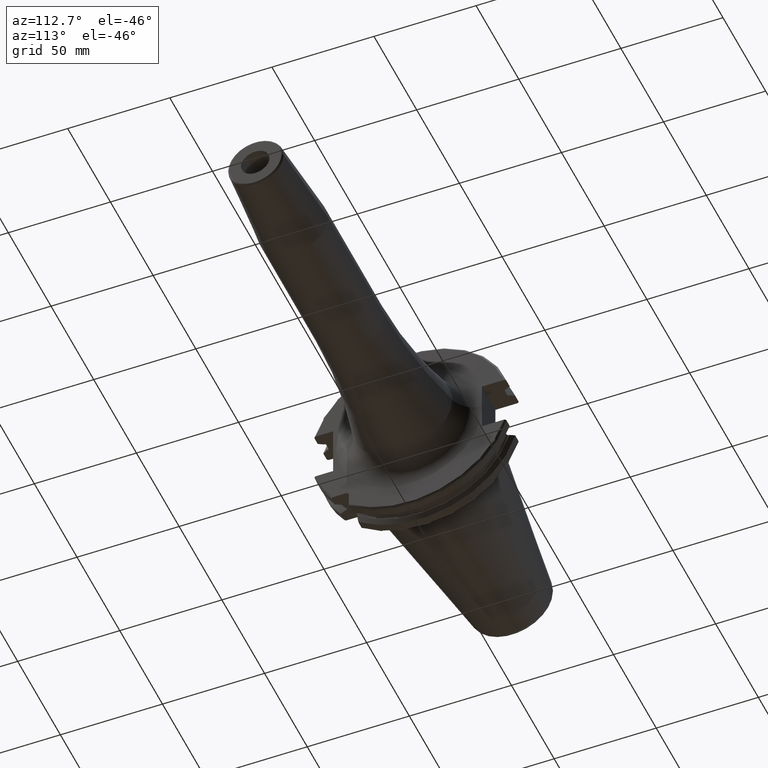
[diagram: clean part render]
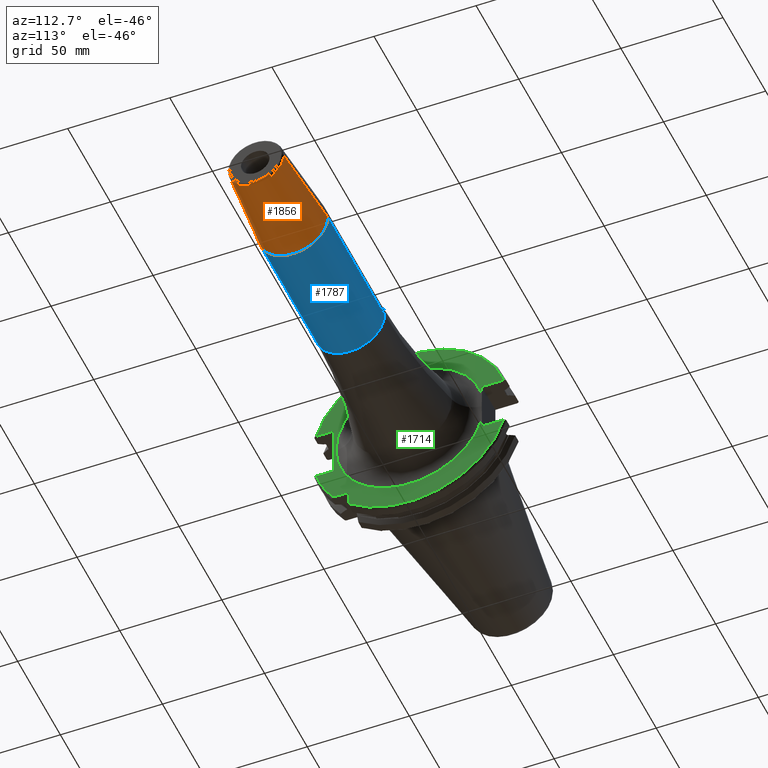
[diagram: same view with three faces highlighted in distinct colors, each labeled with its STEP entity id]
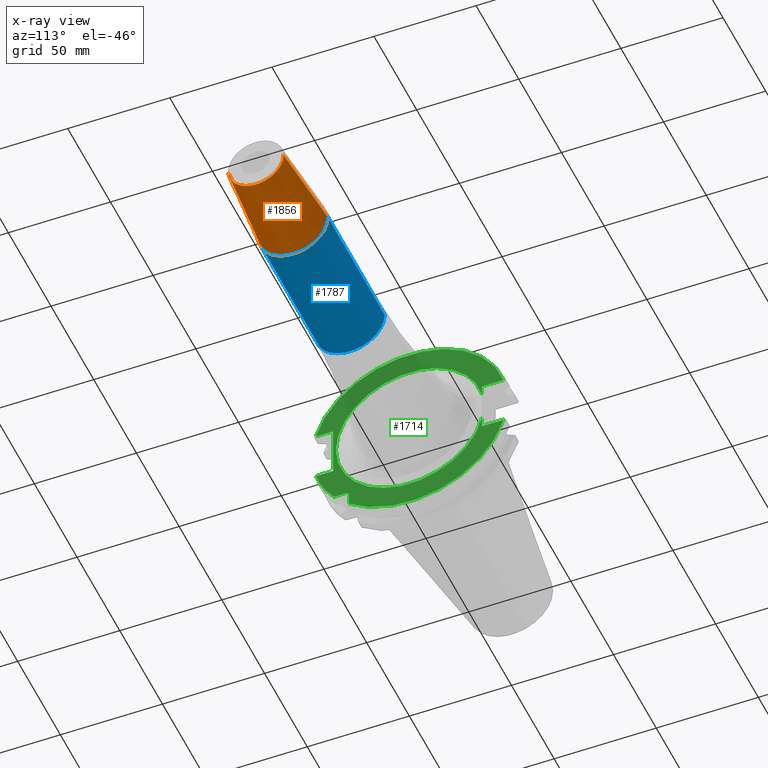
[diagram: x-ray of the same camera — body ghosted, the three highlighted faces saturated]
A machine part, auxiliary view with three faces highlighted in distinct colors.
The next image is the same camera in x-ray (body ghosted, the three faces saturated) — at least one of them is partly hidden behind the body in this view.
Their STEP definitions:

[orange] entity #1856 — the highlighted conical surface has half-angle 4.5 deg.
#225=CARTESIAN_POINT('',(1.555282834234E2,0.E0,0.E0));
#226=DIRECTION('',(-1.E0,0.E0,0.E0));
#227=DIRECTION('',(0.E0,1.E0,0.E0));
#228=AXIS2_PLACEMENT_3D('',#225,#226,#227);
#259=CARTESIAN_POINT('',(1.990784590957E2,0.E0,0.E0));
#260=DIRECTION('',(-1.E0,0.E0,0.E0));
#261=DIRECTION('',(0.E0,1.E0,0.E0));
#262=AXIS2_PLACEMENT_3D('',#259,#260,#261);
#264=DIRECTION('',(-9.969173337331E-1,7.845909572784E-2,6.257929142752E-14));
#265=VECTOR('',#264,4.368484145948E1);
#266=CARTESIAN_POINT('',(1.990784590957E2,1.357252684207E1,
-2.731684525099E-12));
#267=LINE('',#266,#265);
#268=DIRECTION('',(-9.969173337331E-1,-7.845909572784E-2,-6.256993807104E-14));
#269=VECTOR('',#268,4.368484145948E1);
#270=CARTESIAN_POINT('',(1.990784590957E2,-1.357252684207E1,
2.731275925204E-12));
#271=LINE('',#270,#269);
#1470=CARTESIAN_POINT('',(1.555282834234E2,1.7E1,0.E0));
#1471=CARTESIAN_POINT('',(1.555282834234E2,-1.7E1,0.E0));
#1472=VERTEX_POINT('',#1470);
#1473=VERTEX_POINT('',#1471);
#1474=CARTESIAN_POINT('',(1.990784590957E2,1.357252684207E1,0.E0));
#1475=CARTESIAN_POINT('',(1.990784590957E2,-1.357252684207E1,0.E0));
#1476=VERTEX_POINT('',#1474);
#1477=VERTEX_POINT('',#1475);
#1845=CARTESIAN_POINT('',(1.773033712596E2,0.E0,0.E0));
#1846=DIRECTION('',(-1.E0,0.E0,0.E0));
#1847=DIRECTION('',(0.E0,1.E0,0.E0));
#1848=AXIS2_PLACEMENT_3D('',#1845,#1846,#1847);
#1849=CONICAL_SURFACE('',#1848,1.528626342104E1,4.5E0);
#1850=ORIENTED_EDGE('',*,*,#1836,.F.);
#1851=ORIENTED_EDGE('',*,*,#1811,.T.);
#1852=ORIENTED_EDGE('',*,*,#1781,.T.);
#1853=ORIENTED_EDGE('',*,*,#1808,.F.);
#1854=EDGE_LOOP('',(#1850,#1851,#1852,#1853));
#1855=FACE_OUTER_BOUND('',#1854,.F.);
#1856=ADVANCED_FACE('',(#1855),#1849,.T.);
#229=CIRCLE('',#228,1.7E1);
#263=CIRCLE('',#262,1.357252684207E1);
#1781=EDGE_CURVE('',#1472,#1473,#229,.T.);
#1808=EDGE_CURVE('',#1477,#1473,#271,.T.);
#1811=EDGE_CURVE('',#1476,#1472,#267,.T.);
#1836=EDGE_CURVE('',#1476,#1477,#263,.T.);

[blue] entity #1787 — the highlighted cylindrical surface (partial cylindrical patch) has radius 17 mm, axis along (1, 0, 0).
#216=CARTESIAN_POINT('',(8.905E1,0.E0,0.E0));
#217=DIRECTION('',(1.E0,0.E0,0.E0));
#218=DIRECTION('',(0.E0,-1.E0,0.E0));
#219=AXIS2_PLACEMENT_3D('',#216,#217,#218);
#221=DIRECTION('',(-1.E0,0.E0,0.E0));
#222=VECTOR('',#221,6.647828342339E1);
#223=CARTESIAN_POINT('',(1.555282834234E2,-1.7E1,0.E0));
#224=LINE('',#223,#222);
#225=CARTESIAN_POINT('',(1.555282834234E2,0.E0,0.E0));
#226=DIRECTION('',(-1.E0,0.E0,0.E0));
#227=DIRECTION('',(0.E0,1.E0,0.E0));
#228=AXIS2_PLACEMENT_3D('',#225,#226,#227);
#230=DIRECTION('',(-1.E0,0.E0,0.E0));
#231=VECTOR('',#230,6.647828342339E1);
#232=CARTESIAN_POINT('',(1.555282834234E2,1.7E1,0.E0));
#233=LINE('',#232,#231);
#1470=CARTESIAN_POINT('',(1.555282834234E2,1.7E1,0.E0));
#1471=CARTESIAN_POINT('',(1.555282834234E2,-1.7E1,0.E0));
#1472=VERTEX_POINT('',#1470);
#1473=VERTEX_POINT('',#1471);
#1500=CARTESIAN_POINT('',(8.905E1,1.7E1,0.E0));
#1501=VERTEX_POINT('',#1500);
#1502=CARTESIAN_POINT('',(8.905E1,-1.7E1,0.E0));
#1503=VERTEX_POINT('',#1502);
#1773=CARTESIAN_POINT('',(1.00025E1,0.E0,0.E0));
#1774=DIRECTION('',(1.E0,0.E0,0.E0));
#1775=DIRECTION('',(0.E0,-1.E0,0.E0));
#1776=AXIS2_PLACEMENT_3D('',#1773,#1774,#1775);
#1777=CYLINDRICAL_SURFACE('',#1776,1.7E1);
#1778=ORIENTED_EDGE('',*,*,#1754,.F.);
#1780=ORIENTED_EDGE('',*,*,#1779,.F.);
#1782=ORIENTED_EDGE('',*,*,#1781,.F.);
#1784=ORIENTED_EDGE('',*,*,#1783,.T.);
#1785=EDGE_LOOP('',(#1778,#1780,#1782,#1784));
#1786=FACE_OUTER_BOUND('',#1785,.F.);
#1787=ADVANCED_FACE('',(#1786),#1777,.T.);
#220=CIRCLE('',#219,1.7E1);
#229=CIRCLE('',#228,1.7E1);
#1754=EDGE_CURVE('',#1503,#1501,#220,.T.);
#1779=EDGE_CURVE('',#1473,#1503,#224,.T.);
#1781=EDGE_CURVE('',#1472,#1473,#229,.T.);
#1783=EDGE_CURVE('',#1472,#1501,#233,.T.);

[green] entity #1714 — the highlighted planar face has unit normal (1, 0, 0).
#126=CARTESIAN_POINT('',(1.905E1,0.E0,0.E0));
#127=DIRECTION('',(1.E0,0.E0,0.E0));
#128=DIRECTION('',(0.E0,9.758055008668E-1,2.186403999222E-1));
#129=AXIS2_PLACEMENT_3D('',#126,#127,#128);
#131=CARTESIAN_POINT('',(1.905E1,0.E0,0.E0));
#132=DIRECTION('',(1.E0,0.E0,0.E0));
#133=DIRECTION('',(0.E0,-1.E0,0.E0));
#134=AXIS2_PLACEMENT_3D('',#131,#132,#133);
#136=DIRECTION('',(0.E0,7.284698685636E-6,-9.999999999735E-1));
#137=VECTOR('',#136,4.990089729854E0);
#138=CARTESIAN_POINT('',(1.905E1,3.529996364870E1,-7.909910270279E0));
#139=LINE('',#138,#137);
#140=DIRECTION('',(0.E0,-1.E0,0.E0));
#141=VECTOR('',#140,1.066149373389E1);
#142=CARTESIAN_POINT('',(1.905E1,4.596149373389E1,-1.29E1));
#143=LINE('',#142,#141);
#144=DIRECTION('',(0.E0,0.E0,1.E0));
#145=VECTOR('',#144,5.653810627237E0);
#146=CARTESIAN_POINT('',(1.905E1,-2.985E1,-3.725381062724E1));
#147=LINE('',#146,#145);
#148=DIRECTION('',(0.E0,-1.E0,0.E0));
#149=VECTOR('',#148,5.653810627237E0);
#150=CARTESIAN_POINT('',(1.905E1,-3.16E1,-2.985E1));
#151=LINE('',#150,#149);
#152=DIRECTION('',(0.E0,1.E0,0.E0));
#153=VECTOR('',#152,8.461493733886E0);
#154=CARTESIAN_POINT('',(1.905E1,-4.596149373389E1,-1.29E1));
#155=LINE('',#154,#153);
#156=DIRECTION('',(0.E0,0.E0,1.E0));
#157=VECTOR('',#156,2.58E1);
#158=CARTESIAN_POINT('',(1.905E1,-3.75E1,-1.29E1));
#159=LINE('',#158,#157);
#160=DIRECTION('',(0.E0,1.E0,0.E0));
#161=VECTOR('',#160,8.461493733886E0);
#162=CARTESIAN_POINT('',(1.905E1,-4.596149373389E1,1.29E1));
#163=LINE('',#162,#161);
#164=DIRECTION('',(0.E0,-1.E0,0.E0));
#165=VECTOR('',#164,1.066149373389E1);
#166=CARTESIAN_POINT('',(1.905E1,4.596149373389E1,1.29E1));
#167=LINE('',#166,#165);
#168=DIRECTION('',(0.E0,-7.652975920354E-6,-9.999999999707E-1));
#169=VECTOR('',#168,4.990004706070E0);
#170=CARTESIAN_POINT('',(1.905E1,3.53E1,1.29E1));
#171=LINE('',#170,#169);
#609=CARTESIAN_POINT('',(1.905E1,-3.16E1,-3.16E1));
#610=DIRECTION('',(-1.E0,0.E0,0.E0));
#611=DIRECTION('',(0.E0,0.E0,1.E0));
#612=AXIS2_PLACEMENT_3D('',#609,#610,#611);
#644=CARTESIAN_POINT('',(1.905E1,0.E0,0.E0));
#645=DIRECTION('',(-1.E0,0.E0,0.E0));
#646=DIRECTION('',(0.E0,9.627964123359E-1,-2.702278083268E-1));
#647=AXIS2_PLACEMENT_3D('',#644,#645,#646);
#660=CARTESIAN_POINT('',(1.905E1,0.E0,0.E0));
#661=DIRECTION('',(-1.E0,0.E0,0.E0));
#662=DIRECTION('',(0.E0,-7.803888060170E-1,-6.252945797329E-1));
#663=AXIS2_PLACEMENT_3D('',#660,#661,#662);
#674=CARTESIAN_POINT('',(1.905E1,-3.725381062724E1,-2.985E1));
#1022=CARTESIAN_POINT('',(1.905E1,0.E0,0.E0));
#1023=DIRECTION('',(1.E0,0.E0,0.E0));
#1024=DIRECTION('',(0.E0,9.627964123359E-1,2.702278083268E-1));
#1025=AXIS2_PLACEMENT_3D('',#1022,#1023,#1024);
#1366=CARTESIAN_POINT('',(1.905E1,4.596149373389E1,1.29E1));
#1367=CARTESIAN_POINT('',(1.905E1,3.53E1,1.29E1));
#1368=VERTEX_POINT('',#1366);
#1369=VERTEX_POINT('',#1367);
#1370=CARTESIAN_POINT('',(1.905E1,4.596149373389E1,-1.29E1));
#1371=CARTESIAN_POINT('',(1.905E1,3.53E1,-1.29E1));
#1372=VERTEX_POINT('',#1370);
#1373=VERTEX_POINT('',#1371);
#1374=CARTESIAN_POINT('',(1.905E1,-4.596149373389E1,-1.29E1));
#1375=CARTESIAN_POINT('',(1.905E1,-3.75E1,-1.29E1));
#1376=VERTEX_POINT('',#1374);
#1377=VERTEX_POINT('',#1375);
#1378=CARTESIAN_POINT('',(1.905E1,-3.75E1,1.29E1));
#1379=VERTEX_POINT('',#1378);
#1380=CARTESIAN_POINT('',(1.905E1,-4.596149373389E1,1.29E1));
#1381=VERTEX_POINT('',#1380);
#1435=CARTESIAN_POINT('',(1.905E1,-2.985E1,-3.725381062724E1));
#1436=VERTEX_POINT('',#1435);
#1443=CARTESIAN_POINT('',(1.905E1,-3.16E1,-2.985E1));
#1444=CARTESIAN_POINT('',(1.905E1,-2.985E1,-3.16E1));
#1445=VERTEX_POINT('',#1443);
#1446=VERTEX_POINT('',#1444);
#1468=VERTEX_POINT('',#674);
#1494=CARTESIAN_POINT('',(1.905E1,3.530014578746E1,7.909402012415E0));
#1495=CARTESIAN_POINT('',(1.905E1,-3.617539125994E1,1.323385845353E-13));
#1496=VERTEX_POINT('',#1494);
#1497=VERTEX_POINT('',#1495);
#1498=CARTESIAN_POINT('',(1.905E1,3.530019495966E1,-7.909182550669E0));
#1499=VERTEX_POINT('',#1498);
#1679=CARTESIAN_POINT('',(1.905E1,0.E0,0.E0));
#1680=DIRECTION('',(1.E0,0.E0,0.E0));
#1681=DIRECTION('',(0.E0,-1.E0,0.E0));
#1682=AXIS2_PLACEMENT_3D('',#1679,#1680,#1681);
#1683=PLANE('',#1682);
#1685=ORIENTED_EDGE('',*,*,#1684,.T.);
#1687=ORIENTED_EDGE('',*,*,#1686,.T.);
#1688=ORIENTED_EDGE('',*,*,#1657,.T.);
#1690=ORIENTED_EDGE('',*,*,#1689,.F.);
#1692=ORIENTED_EDGE('',*,*,#1691,.T.);
#1694=ORIENTED_EDGE('',*,*,#1693,.T.);
#1696=ORIENTED_EDGE('',*,*,#1695,.F.);
#1698=ORIENTED_EDGE('',*,*,#1697,.T.);
#1700=ORIENTED_EDGE('',*,*,#1699,.T.);
#1702=ORIENTED_EDGE('',*,*,#1701,.T.);
#1704=ORIENTED_EDGE('',*,*,#1703,.T.);
#1706=ORIENTED_EDGE('',*,*,#1705,.F.);
#1708=ORIENTED_EDGE('',*,*,#1707,.F.);
#1710=ORIENTED_EDGE('',*,*,#1709,.T.);
#1711=ORIENTED_EDGE('',*,*,#1663,.T.);
#1712=EDGE_LOOP('',(#1685,#1687,#1688,#1690,#1692,#1694,#1696,#1698,#1700,#1702,
#1704,#1706,#1708,#1710,#1711));
#1713=FACE_OUTER_BOUND('',#1712,.F.);
#1714=ADVANCED_FACE('',(#1713),#1683,.T.);
#130=CIRCLE('',#129,3.617539125994E1);
#135=CIRCLE('',#134,3.617539125994E1);
#613=CIRCLE('',#612,1.75E0);
#648=CIRCLE('',#647,4.77375E1);
#664=CIRCLE('',#663,4.77375E1);
#1026=CIRCLE('',#1025,4.77375E1);
#1657=EDGE_CURVE('',#1499,#1373,#139,.T.);
#1663=EDGE_CURVE('',#1369,#1496,#171,.T.);
#1684=EDGE_CURVE('',#1496,#1497,#130,.T.);
#1686=EDGE_CURVE('',#1497,#1499,#135,.T.);
#1689=EDGE_CURVE('',#1372,#1373,#143,.T.);
#1691=EDGE_CURVE('',#1372,#1436,#648,.T.);
#1693=EDGE_CURVE('',#1436,#1446,#147,.T.);
#1695=EDGE_CURVE('',#1445,#1446,#613,.T.);
#1697=EDGE_CURVE('',#1445,#1468,#151,.T.);
#1699=EDGE_CURVE('',#1468,#1376,#664,.T.);
#1701=EDGE_CURVE('',#1376,#1377,#155,.T.);
#1703=EDGE_CURVE('',#1377,#1379,#159,.T.);
#1705=EDGE_CURVE('',#1381,#1379,#163,.T.);
#1707=EDGE_CURVE('',#1368,#1381,#1026,.T.);
#1709=EDGE_CURVE('',#1368,#1369,#167,.T.);